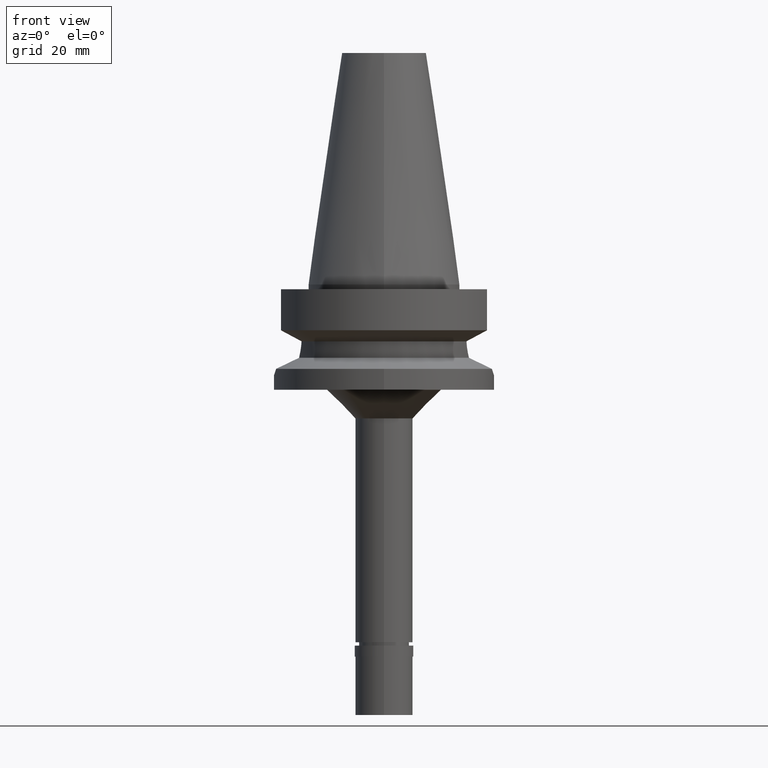
[diagram: clean part render]
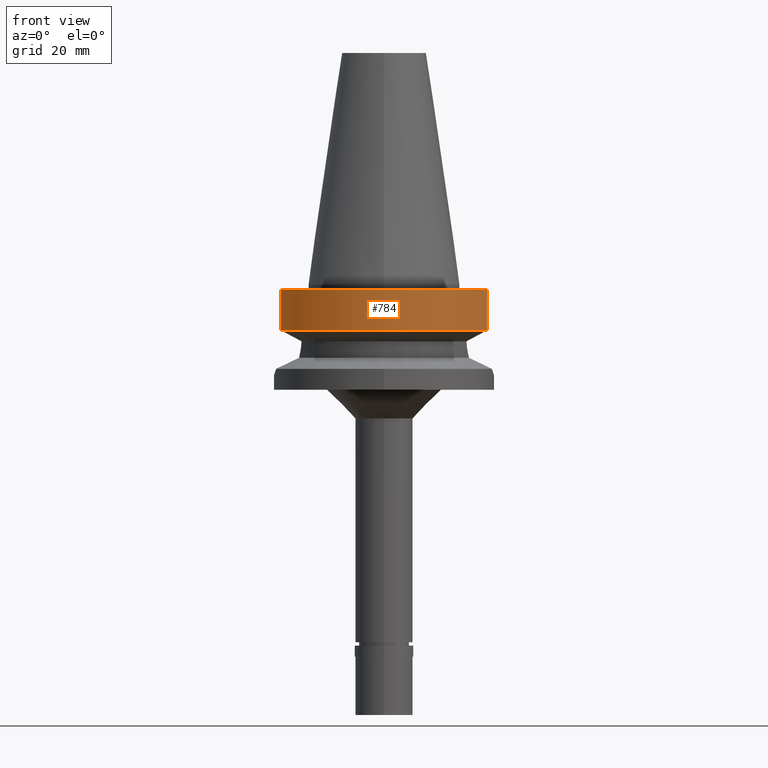
[diagram: same view with one face highlighted and labeled with its STEP entity id]
A machine part, front view. The second image highlights one B-rep face of the part: STEP entity #784.
In plain terms, the highlighted cylindrical surface (partial cylindrical patch) has radius 23.0018 mm, axis along (0, 0, -1).
Its self-contained STEP definition (entity closure, byte-faithful):
#2 = VERTEX_POINT ( 'NONE', #2060 ) ;
#64 = DIRECTION ( 'NONE',  ( -9.129686183793688433E-08, -2.443710705671914470E-07, -0.9999999999999659162 ) ) ;
#202 = CARTESIAN_POINT ( 'NONE',  ( 0.0000000000000000000, 1.093341284896999988E-14, -9.567208369710998639 ) ) ;
#234 = CARTESIAN_POINT ( 'NONE',  ( 0.0000000000000000000, 1.899672114836999856E-14, 55.12000000000000455 ) ) ;
#268 = VERTEX_POINT ( 'NONE', #983 ) ;
#416 = CARTESIAN_POINT ( 'NONE',  ( 21.54715579650000024, -8.050000000000000711, -1.000000000000000000 ) ) ;
#442 = LINE ( 'NONE', #416, #2771 ) ;
#537 = CARTESIAN_POINT ( 'NONE',  ( -21.54715579650000024, -8.050000000000000711, -1.000000000000000000 ) ) ;
#549 = EDGE_CURVE ( 'NONE', #2, #2021, #860, .T. ) ;
#784 = ADVANCED_FACE ( 'NONE', ( #1798 ), #1639, .T. ) ;
#839 = EDGE_CURVE ( 'NONE', #2376, #268, #442, .T. ) ;
#860 = LINE ( 'NONE', #2790, #2811 ) ;
#983 = CARTESIAN_POINT ( 'NONE',  ( 21.54715579650000024, -8.050000000000000711, -9.567208369710998639 ) ) ;
#992 = ORIENTED_EDGE ( 'NONE', *, *, #1281, .T. ) ;
#1113 = EDGE_LOOP ( 'NONE', ( #1626, #992, #2170, #2324 ) ) ;
#1238 = DIRECTION ( 'NONE',  ( 0.0000000000000000000, -1.000000000000000000, 0.0000000000000000000 ) ) ;
#1281 = EDGE_CURVE ( 'NONE', #2, #268, #2402, .T. ) ;
#1354 = DIRECTION ( 'NONE',  ( 0.0000000000000000000, 0.0000000000000000000, 1.000000000000000000 ) ) ;
#1479 = CIRCLE ( 'NONE', #1610, 23.00179173279000011 ) ;
#1526 = DIRECTION ( 'NONE',  ( 0.0000000000000000000, -1.000000000000000000, 0.0000000000000000000 ) ) ;
#1610 = AXIS2_PLACEMENT_3D ( 'NONE', #1656, #2335, #1526 ) ;
#1626 = ORIENTED_EDGE ( 'NONE', *, *, #549, .F. ) ;
#1639 = CYLINDRICAL_SURFACE ( 'NONE', #2276, 23.00179173279000011 ) ;
#1656 = CARTESIAN_POINT ( 'NONE',  ( 0.0000000000000000000, 1.899672114836999856E-14, -0.9999999999999000799 ) ) ;
#1691 = DIRECTION ( 'NONE',  ( 1.842247677261992558E-08, -4.931077834718982456E-08, 0.9999999999999985567 ) ) ;
#1798 = FACE_OUTER_BOUND ( 'NONE', #1113, .T. ) ;
#2020 = CARTESIAN_POINT ( 'NONE',  ( 21.54715579650000024, -8.050000000000000711, -1.000000000000000000 ) ) ;
#2021 = VERTEX_POINT ( 'NONE', #537 ) ;
#2060 = CARTESIAN_POINT ( 'NONE',  ( -21.54715595432999820, -8.049999577544001639, -9.567211145671999262 ) ) ;
#2170 = ORIENTED_EDGE ( 'NONE', *, *, #839, .F. ) ;
#2276 = AXIS2_PLACEMENT_3D ( 'NONE', #234, #2557, #1238 ) ;
#2324 = ORIENTED_EDGE ( 'NONE', *, *, #2653, .T. ) ;
#2335 = DIRECTION ( 'NONE',  ( 0.0000000000000000000, 0.0000000000000000000, -1.000000000000000000 ) ) ;
#2376 = VERTEX_POINT ( 'NONE', #2020 ) ;
#2402 = CIRCLE ( 'NONE', #2854, 23.00179173279000011 ) ;
#2557 = DIRECTION ( 'NONE',  ( 0.0000000000000000000, 0.0000000000000000000, -1.000000000000000000 ) ) ;
#2653 = EDGE_CURVE ( 'NONE', #2376, #2021, #1479, .T. ) ;
#2660 = DIRECTION ( 'NONE',  ( 0.0000000000000000000, -1.000000000000000000, 0.0000000000000000000 ) ) ;
#2771 = VECTOR ( 'NONE', #64, 1000.000000000000114 ) ;
#2790 = CARTESIAN_POINT ( 'NONE',  ( -21.54715595432999820, -8.049999577544001639, -9.567211145671999262 ) ) ;
#2811 = VECTOR ( 'NONE', #1691, 1000.000000000000114 ) ;
#2854 = AXIS2_PLACEMENT_3D ( 'NONE', #202, #1354, #2660 ) ;